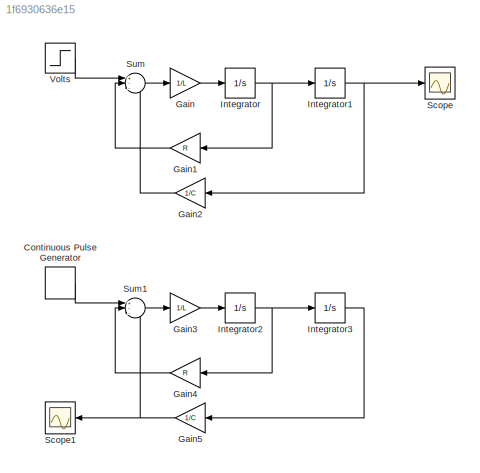
MODEL slx_1f6930636e15
KIND model
CONFIG AbsTol = auto
CONFIG EnableMultiTasking = off
CONFIG FixedStep = auto
CONFIG MaxStep = auto
CONFIG MinStep = auto
CONFIG RelTol = 1e-3
CONFIG SampleTimeConstraint = Unconstrained
CONFIG SolverName = VariableStepAuto
CONFIG StartTime = 0.0
CONFIG StopTime = 0.002
BLOCK [DiscretePulseGenerator] Continuous Pulse Generator
  Amplitude = 5
  Period = 0.002
  PulseType = Time based
  PulseWidth = 50
BLOCK [Gain] Gain
  Gain = 1/L
BLOCK [Gain] Gain1
  Gain = R
  NameLocation = top
BLOCK [Gain] Gain2
  Gain = 1/C
  NameLocation = top
BLOCK [Gain] Gain3
  Gain = 1/L
BLOCK [Gain] Gain4
  Gain = R
  NameLocation = top
BLOCK [Gain] Gain5
  Gain = 1/C
  NameLocation = top
BLOCK [Integrator] Integrator
BLOCK [Integrator] Integrator1
BLOCK [Integrator] Integrator2
BLOCK [Integrator] Integrator3
BLOCK [Scope] Scope
  Floating = off
  NumInputPorts = 1
  ScopeSpecificationString = Simulink.scopes.TimeScopeBlockCfg('CurrentConfiguration', extmgr.ConfigurationSet(extmgr.Configuration('Core','General UI',true),extmgr.Configuration('Core','Source UI',true),extmgr.Configuration('Sources','WiredSimulink',true),extmgr.Configuration('Visuals','Time Domain',true,'SerializedDisplays',{struct('MinYLimReal','-0.0000002','MaxYLimReal','0.0000019','YLabelReal','','MinYLimMag','0.0000000'...<+1391ch>
BLOCK [Scope] Scope1
  Floating = off
  NameLocation = top
  NumInputPorts = 1
  ScopeSpecificationString = Simulink.scopes.TimeScopeBlockCfg('CurrentConfiguration', extmgr.ConfigurationSet(extmgr.Configuration('Core','General UI',true),extmgr.Configuration('Core','Source UI',true),extmgr.Configuration('Sources','WiredSimulink',true,'DataLoggingVariableName','ScopeData1'),extmgr.Configuration('Visuals','Time Domain',true,'SerializedDisplays',{struct('MinYLimReal','1.0932','MaxYLimReal','13.67525','YLabe...<+1504ch>
BLOCK [Sum] Sum
  Inputs = +--
BLOCK [Sum] Sum1
  Inputs = +--
BLOCK [Step] Volts
  After = 12
  SampleTime = 0
  Time = 0
LINE Continuous Pulse Generator:1 -> Sum1:1
LINE Gain1:1 -> Sum:2
LINE Gain2:1 -> Sum:3
LINE Gain3:1 -> Integrator2:1
LINE Gain4:1 -> Sum1:2
NET Gain5:1 -> Scope1:1, Sum1:3
LINE Gain:1 -> Integrator:1
NET Integrator1:1 -> Gain2:1, Scope:1
NET Integrator2:1 -> Gain4:1, Integrator3:1
LINE Integrator3:1 -> Gain5:1
NET Integrator:1 -> Gain1:1, Integrator1:1
LINE Sum1:1 -> Gain3:1
LINE Sum:1 -> Gain:1
LINE Volts:1 -> Sum:1
note: NET lines group one-source signal fan-out (src -> all destinations, sorted); 1:1 wires keep LINE
